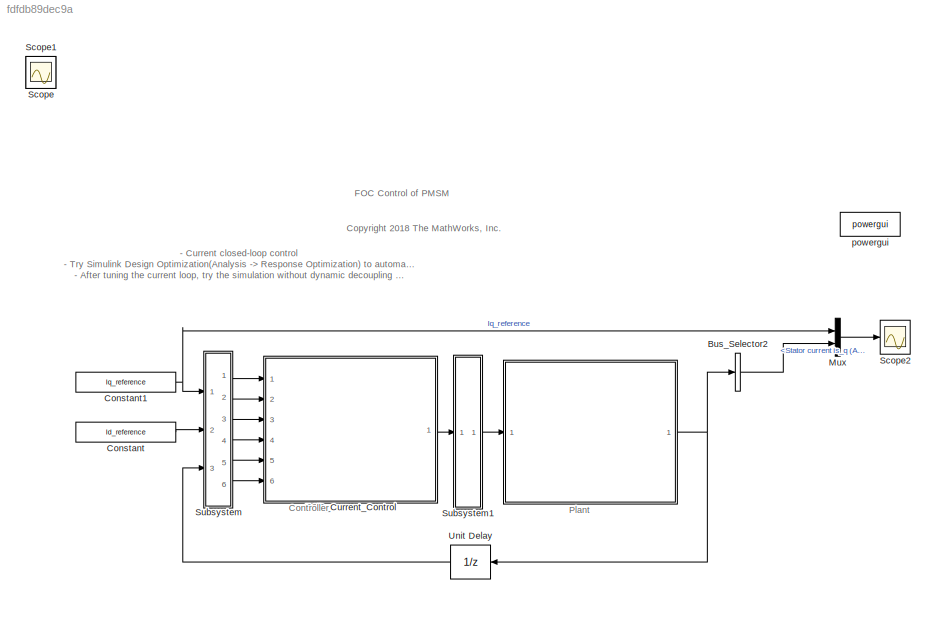
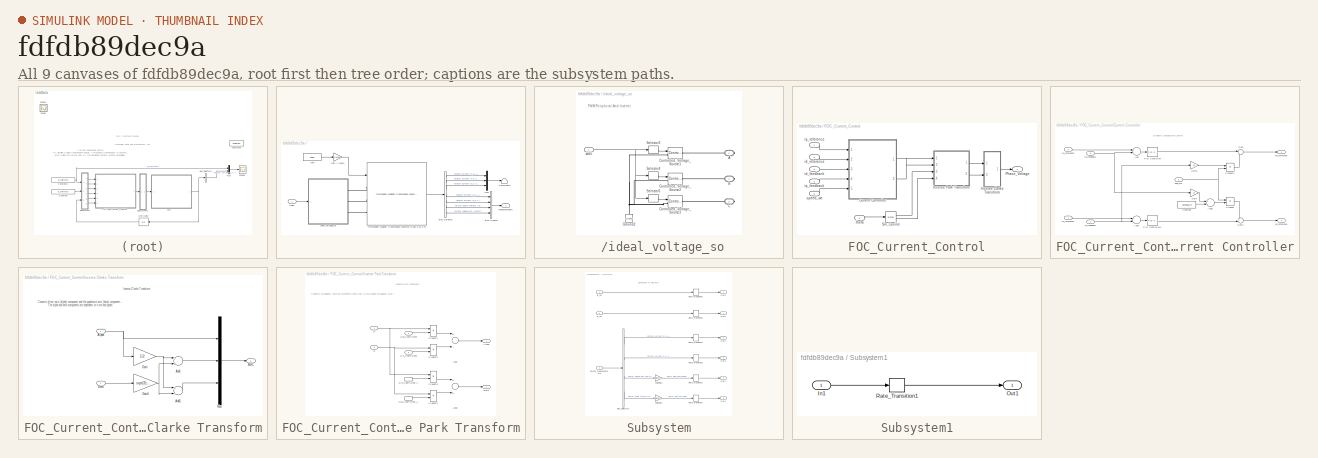
[diagram: thumbnail index - all 9 canvases of the model, root first then tree order]
MODEL slx_fdfdb89dec9a
KIND model
CONFIG AbsTol = auto
CONFIG EnableMultiTasking = off
CONFIG FixedStep = auto
CONFIG MaxStep = 1e-4
CONFIG MinStep = auto
CONFIG RelTol = 1e-3
CONFIG SampleTimeConstraint = Unconstrained
CONFIG Solver = FixedStepDiscrete
CONFIG SolverName = FixedStepDiscrete
CONFIG StartTime = 0.0
CONFIG StopTime = 0.3
BLOCK [SubSystem]  
  Ports = [1, 1]
  RequestExecContextInheritance = off
BLOCK [BusCreator]  /Bus Creator
  DisplayOption = bar
  InheritFromInputs = on
  Inputs = 4
  Ports = [4, 1]
BLOCK [BusSelector]  /Bus Selector
  OutputAsBus = off
  OutputSignals = Stator current is_a (A),Stator current is_b (A),Stator current is_c (A),Stator current is_q (A),Stator current is_d (A),Rotor angle thetam (rad),Rotor speed wm (rad/s)
  Ports = [1, 7]
BLOCK [Mux]  /Mux
  DisplayOption = bar
  Inputs = 3
  Ports = [3, 1]
BLOCK [Reference]  /Permanent Magnet Synchronous Machine [0.002 0.01 3 0]  REF=powerlib/Machines/Permanent Magnet
Synchronous Machine
  Ports = [1, 1, 0, 0, 0, 3]
  SourceBlock = powerlib/Machines/Permanent Magnet\nSynchronous Machine
  SourceProductBaseCode = PS
  SourceProductName = Simscape Electrical
  SourceType = Permanent Magnet Synchronous Machine
BLOCK [Terminator]  /Terminator
BLOCK [Inport]  /Vabc
  IconDisplay = Port number
BLOCK [SubSystem]  /ideal_voltage_so
  Ports = [1, 0, 0, 0, 0, 0, 3]
  RequestExecContextInheritance = off
  VariantControl = variantPwm == enumPwm.behavior
BLOCK [PMIOPort]  /ideal_voltage_so/A
  Side = Right
  Tag = PMCPort
BLOCK [PMIOPort]  /ideal_voltage_so/B
  Port = 2
  Side = Right
  Tag = PMCPort
BLOCK [PMIOPort]  /ideal_voltage_so/C
  Port = 3
  Side = Right
  Tag = PMCPort
BLOCK [Reference]  /ideal_voltage_so/Controlled_Voltage_Source1  REF=powerlib/Electrical
Sources/Controlled Voltage Source
  Ports = [1, 0, 0, 0, 0, 1, 1]
  SourceBlock = powerlib/Electrical\nSources/Controlled Voltage Source
  SourceProductBaseCode = PS
  SourceProductName = Simscape Electrical
  SourceType = Controlled Voltage Source
BLOCK [Reference]  /ideal_voltage_so/Controlled_Voltage_Source2  REF=powerlib/Electrical
Sources/Controlled Voltage Source
  Ports = [1, 0, 0, 0, 0, 1, 1]
  SourceBlock = powerlib/Electrical\nSources/Controlled Voltage Source
  SourceProductBaseCode = PS
  SourceProductName = Simscape Electrical
  SourceType = Controlled Voltage Source
BLOCK [Reference]  /ideal_voltage_so/Controlled_Voltage_Source3  REF=powerlib/Electrical
Sources/Controlled Voltage Source
  Ports = [1, 0, 0, 0, 0, 1, 1]
  SourceBlock = powerlib/Electrical\nSources/Controlled Voltage Source
  SourceProductBaseCode = PS
  SourceProductName = Simscape Electrical
  SourceType = Controlled Voltage Source
BLOCK [Reference]  /ideal_voltage_so/Ground2  REF=powerlib/Elements/Ground
  Ports = [0, 0, 0, 0, 0, 1]
  SourceBlock = powerlib/Elements/Ground
  SourceProductBaseCode = PS
  SourceProductName = Simscape Electrical
  SourceType = Ground
BLOCK [Selector]  /ideal_voltage_so/Selector3
  IndexOptions = Index vector (dialog)
  Indices = [1]
  InputPortWidth = 3
  OutputSizes = 1
  Ports = [1, 1]
BLOCK [Selector]  /ideal_voltage_so/Selector4
  IndexOptions = Index vector (dialog)
  Indices = 2
  InputPortWidth = 3
  OutputSizes = 1
  Ports = [1, 1]
BLOCK [Selector]  /ideal_voltage_so/Selector5
  IndexOptions = Index vector (dialog)
  Indices = 3
  InputPortWidth = 3
  OutputSizes = 1
  Ports = [1, 1]
BLOCK [Inport]  /ideal_voltage_so/vabc
  IconDisplay = Port number
BLOCK [Outport]  /measurements
  IconDisplay = Port number
BLOCK [Constant]  /rpm
  Value = 1000
BLOCK [Gain]  /rpm -> rad//s
  Gain = 2*pi/60
  OutDataTypeStr = Inherit: Inherit via internal rule
  ParamDataTypeStr = Inherit: Inherit via internal rule
  SaturateOnIntegerOverflow = off
BLOCK [BusSelector] Bus_Selector2
  OutputAsBus = off
  OutputSignals = Stator current is_q (A)
  Ports = [1, 1]
BLOCK [Constant] Constant
  Value = Id_reference
BLOCK [Constant] Constant1
  Value = Iq_reference
  VectorParams1D = off
BLOCK [SubSystem] FOC_Current_Control
  Ports = [6, 1]
  RequestExecContextInheritance = off
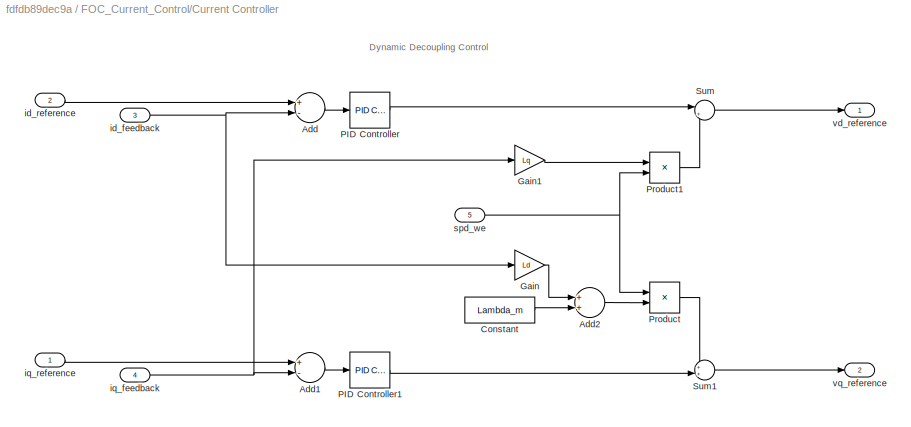
BLOCK [SubSystem] FOC_Current_Control/Current Controller
  Ports = [5, 2]
  RequestExecContextInheritance = off
BLOCK [Sum] FOC_Current_Control/Current Controller/Add
  InputSameDT = off
  Inputs = +-
  OutDataTypeStr = Inherit: Inherit via internal rule
  Ports = [2, 1]
  SaturateOnIntegerOverflow = off
BLOCK [Sum] FOC_Current_Control/Current Controller/Add1
  InputSameDT = off
  Inputs = +-
  OutDataTypeStr = Inherit: Inherit via internal rule
  Ports = [2, 1]
  SaturateOnIntegerOverflow = off
BLOCK [Sum] FOC_Current_Control/Current Controller/Add2
  InputSameDT = off
  OutDataTypeStr = Inherit: Inherit via internal rule
  Ports = [2, 1]
  SaturateOnIntegerOverflow = off
BLOCK [Constant] FOC_Current_Control/Current Controller/Constant
  SampleTime = 1e-4
  Value = Lambda_m
BLOCK [Gain] FOC_Current_Control/Current Controller/Gain
  Gain = Ld
  OutDataTypeStr = Inherit: Inherit via internal rule
  ParamDataTypeStr = Inherit: Inherit via internal rule
  SaturateOnIntegerOverflow = off
BLOCK [Gain] FOC_Current_Control/Current Controller/Gain1
  Gain = Lq
  OutDataTypeStr = Inherit: Inherit via internal rule
  ParamDataTypeStr = Inherit: Inherit via internal rule
  SaturateOnIntegerOverflow = off
BLOCK [Reference] FOC_Current_Control/Current Controller/PID Controller  REF=simulink/Continuous/PID Controller
  Ports = [1, 1]
  SourceBlock = simulink/Continuous/PID Controller
  SourceProductBaseCode = SL
  SourceProductName = Simulink
  SourceType = PID 1dof
BLOCK [Reference] FOC_Current_Control/Current Controller/PID Controller1  REF=simulink/Continuous/PID Controller
  Ports = [1, 1]
  SourceBlock = simulink/Continuous/PID Controller
  SourceProductBaseCode = SL
  SourceProductName = Simulink
  SourceType = PID 1dof
BLOCK [Product] FOC_Current_Control/Current Controller/Product
  InputSameDT = off
  OutDataTypeStr = Inherit: Inherit via internal rule
  Ports = [2, 1]
  RndMeth = Floor
  SaturateOnIntegerOverflow = off
BLOCK [Product] FOC_Current_Control/Current Controller/Product1
  InputSameDT = off
  OutDataTypeStr = Inherit: Inherit via internal rule
  Ports = [2, 1]
  RndMeth = Floor
  SaturateOnIntegerOverflow = off
BLOCK [Sum] FOC_Current_Control/Current Controller/Sum
  IconShape = round
  InputSameDT = off
  Inputs = |+-
  OutDataTypeStr = Inherit: Inherit via internal rule
  Ports = [2, 1]
  SaturateOnIntegerOverflow = off
BLOCK [Sum] FOC_Current_Control/Current Controller/Sum1
  IconShape = round
  InputSameDT = off
  Inputs = ++|
  OutDataTypeStr = Inherit: Inherit via internal rule
  Ports = [2, 1]
  SaturateOnIntegerOverflow = off
BLOCK [Inport] FOC_Current_Control/Current Controller/id_feedback
  IconDisplay = Port number
  Port = 3
  SampleTime = 1e-4
BLOCK [Inport] FOC_Current_Control/Current Controller/id_reference
  IconDisplay = Port number
  Port = 2
  SampleTime = 1e-4
BLOCK [Inport] FOC_Current_Control/Current Controller/iq_feedback
  IconDisplay = Port number
  Port = 4
  SampleTime = 1e-4
BLOCK [Inport] FOC_Current_Control/Current Controller/iq_reference
  IconDisplay = Port number
  SampleTime = 1e-4
BLOCK [Inport] FOC_Current_Control/Current Controller/spd_we
  IconDisplay = Port number
  Port = 5
  SampleTime = 1e-4
BLOCK [Outport] FOC_Current_Control/Current Controller/vd_reference
  IconDisplay = Port number
  SampleTime = 1e-4
BLOCK [Outport] FOC_Current_Control/Current Controller/vq_reference
  IconDisplay = Port number
  Port = 2
  SampleTime = 1e-4
BLOCK [SubSystem] FOC_Current_Control/Inverse Clarke Transform
  Ports = [2, 1]
  RequestExecContextInheritance = off
BLOCK [Outport] FOC_Current_Control/Inverse Clarke Transform/ABC
  IconDisplay = Port number
BLOCK [Sum] FOC_Current_Control/Inverse Clarke Transform/Add
  InputSameDT = off
  Inputs = -+
  Ports = [2, 1]
  SaturateOnIntegerOverflow = off
BLOCK [Sum] FOC_Current_Control/Inverse Clarke Transform/Add1
  InputSameDT = off
  Inputs = --
  Ports = [2, 1]
  SaturateOnIntegerOverflow = off
BLOCK [Inport] FOC_Current_Control/Inverse Clarke Transform/Alpha
  IconDisplay = Port number
BLOCK [Inport] FOC_Current_Control/Inverse Clarke Transform/Beta
  IconDisplay = Port number
  Port = 2
BLOCK [Gain] FOC_Current_Control/Inverse Clarke Transform/Gain
  Gain = 1/2
  OutDataTypeStr = Inherit: Inherit via internal rule
  ParamDataTypeStr = Inherit: Inherit via internal rule
  SaturateOnIntegerOverflow = off
BLOCK [Gain] FOC_Current_Control/Inverse Clarke Transform/Gain1
  Gain = sqrt(3)/2
  OutDataTypeStr = Inherit: Inherit via internal rule
  ParamDataTypeStr = Inherit: Inherit via internal rule
  SaturateOnIntegerOverflow = off
BLOCK [Mux] FOC_Current_Control/Inverse Clarke Transform/Mux
  DisplayOption = bar
  Inputs = 3
  Ports = [3, 1]
BLOCK [SubSystem] FOC_Current_Control/Inverse Park Transform
  Ports = [4, 2]
  RequestExecContextInheritance = off
BLOCK [Sum] FOC_Current_Control/Inverse Park Transform/Add1
  InputSameDT = off
  Inputs = +-
  Ports = [2, 1]
  SaturateOnIntegerOverflow = off
BLOCK [Sum] FOC_Current_Control/Inverse Park Transform/Add2
  InputSameDT = off
  Ports = [2, 1]
  SaturateOnIntegerOverflow = off
BLOCK [Outport] FOC_Current_Control/Inverse Park Transform/Alpha
  IconDisplay = Port number
BLOCK [Outport] FOC_Current_Control/Inverse Park Transform/Beta
  IconDisplay = Port number
  Port = 2
BLOCK [Inport] FOC_Current_Control/Inverse Park Transform/Cos_Coefficient
  IconDisplay = Port number
  Port = 4
BLOCK [InportShadow] FOC_Current_Control/Inverse Park Transform/Cos_Coefficient_1
  IconDisplay = Port number
  Port = 4
BLOCK [Inport] FOC_Current_Control/Inverse Park Transform/D
  IconDisplay = Port number
BLOCK [Product] FOC_Current_Control/Inverse Park Transform/Product1
  InputSameDT = off
  OutDataTypeStr = Inherit: Inherit via internal rule
  Ports = [2, 1]
  RndMeth = Simplest
  SaturateOnIntegerOverflow = off
BLOCK [Product] FOC_Current_Control/Inverse Park Transform/Product2
  InputSameDT = off
  OutDataTypeStr = Inherit: Inherit via internal rule
  Ports = [2, 1]
  RndMeth = Simplest
  SaturateOnIntegerOverflow = off
BLOCK [Product] FOC_Current_Control/Inverse Park Transform/Product3
  InputSameDT = off
  OutDataTypeStr = Inherit: Inherit via internal rule
  Ports = [2, 1]
  RndMeth = Simplest
  SaturateOnIntegerOverflow = off
BLOCK [Product] FOC_Current_Control/Inverse Park Transform/Product4
  InputSameDT = off
  OutDataTypeStr = Inherit: Inherit via internal rule
  Ports = [2, 1]
  RndMeth = Simplest
  SaturateOnIntegerOverflow = off
BLOCK [Inport] FOC_Current_Control/Inverse Park Transform/Q
  IconDisplay = Port number
  Port = 2
BLOCK [Inport] FOC_Current_Control/Inverse Park Transform/Sin_Coefficient
  IconDisplay = Port number
  Port = 3
BLOCK [InportShadow] FOC_Current_Control/Inverse Park Transform/Sin_Coefficient_1
  IconDisplay = Port number
  Port = 3
BLOCK [Outport] FOC_Current_Control/Phase_Voltage
  IconDisplay = Port number
  SampleTime = 1e-4
BLOCK [Trigonometry] FOC_Current_Control/Sin_Cosine
  Operator = sincos
  Ports = [1, 2]
BLOCK [Inport] FOC_Current_Control/id_feedback
  IconDisplay = Port number
  Port = 4
  SampleTime = 1e-4
BLOCK [Inport] FOC_Current_Control/id_reference
  IconDisplay = Port number
  Port = 2
  SampleTime = 1e-4
BLOCK [Inport] FOC_Current_Control/iq_feedback
  IconDisplay = Port number
  Port = 3
  SampleTime = 1e-4
BLOCK [Inport] FOC_Current_Control/iq_reference
  IconDisplay = Port number
  SampleTime = 1e-4
BLOCK [Inport] FOC_Current_Control/speed_we
  IconDisplay = Port number
  Port = 5
  SampleTime = 1e-4
BLOCK [Inport] FOC_Current_Control/theta
  IconDisplay = Port number
  Port = 6
  SampleTime = 1e-4
BLOCK [Mux] Mux
  DisplayOption = bar
  Inputs = 2
  Ports = [2, 1]
BLOCK [Scope] Scope
  Floating = off
  IOType = viewer
  NumInputPorts = 1
  Ports = []
  ScopeSpecificationString = Simulink.scopes.TimeScopeBlockCfg('CurrentConfiguration', extmgr.ConfigurationSet(extmgr.Configuration('Core','General UI',true),extmgr.Configuration('Core','Source UI',true),extmgr.Configuration('Sources','WiredSimulink',true,'DataLoggingVariableName','ScopeData1'),extmgr.Configuration('Visuals','Time Domain',true,'SerializedDisplays',{struct('MinYLimReal','0.10553','MaxYLimReal','0.2838','YLabel...<+1378ch>
BLOCK [Scope] Scope1
  Floating = off
  IOType = viewer
  NumInputPorts = 1
  Ports = []
  ScopeSpecificationString = Simulink.scopes.TimeScopeBlockCfg('CurrentConfiguration', extmgr.ConfigurationSet(extmgr.Configuration('Core','General UI',true),extmgr.Configuration('Core','Source UI',true),extmgr.Configuration('Sources','WiredSimulink',true,'DataLoggingVariableName','ScopeData2'),extmgr.Configuration('Visuals','Time Domain',true,'SerializedDisplays',{struct('MinYLimReal','-0.03595','MaxYLimReal','0.48049','YLab...<+1384ch>
BLOCK [Scope] Scope2
  Floating = off
  NumInputPorts = 1
  Ports = [1]
  ScopeSpecificationString = Simulink.scopes.TimeScopeBlockCfg('CurrentConfiguration', extmgr.ConfigurationSet(extmgr.Configuration('Core','General UI',true,'FigureColor',[1 1 1]),extmgr.Configuration('Core','Source UI',true),extmgr.Configuration('Sources','WiredSimulink',true,'DataLoggingVariableName','ScopeData1'),extmgr.Configuration('Visuals','Time Domain',true,'SerializedDisplays',{struct('MinYLimReal','-13.40344','MaxYL...<+2014ch>
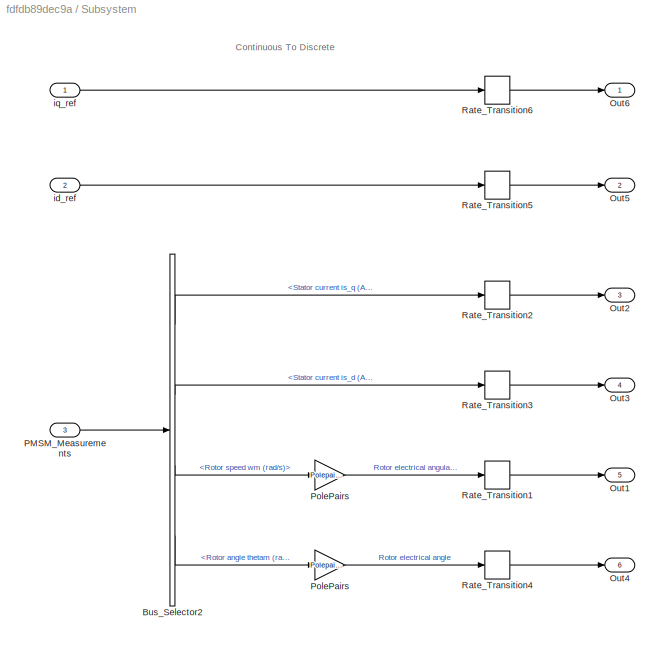
BLOCK [SubSystem] Subsystem
  Ports = [3, 6]
  RequestExecContextInheritance = off
BLOCK [BusSelector] Subsystem/Bus_Selector2
  OutputAsBus = off
  OutputSignals = Stator current is_q (A),Stator current is_d (A),Rotor speed wm (rad/s),Rotor angle thetam (rad)
  Ports = [1, 4]
BLOCK [Outport] Subsystem/Out1
  IconDisplay = Port number
  Port = 5
BLOCK [Outport] Subsystem/Out2
  IconDisplay = Port number
  Port = 3
BLOCK [Outport] Subsystem/Out3
  IconDisplay = Port number
  Port = 4
BLOCK [Outport] Subsystem/Out4
  IconDisplay = Port number
  Port = 6
BLOCK [Outport] Subsystem/Out5
  IconDisplay = Port number
  Port = 2
BLOCK [Outport] Subsystem/Out6
  IconDisplay = Port number
BLOCK [Inport] Subsystem/PMSM_Measurements
  IconDisplay = Port number
  Port = 3
BLOCK [Gain] Subsystem/PolePairs
  Gain = Polepairs
  OutDataTypeStr = Inherit: Inherit via internal rule
  ParamDataTypeStr = Inherit: Inherit via internal rule
  SaturateOnIntegerOverflow = off
BLOCK [Gain] Subsystem/PolePairs 
  Gain = Polepairs
  OutDataTypeStr = Inherit: Inherit via internal rule
  ParamDataTypeStr = Inherit: Inherit via internal rule
  SaturateOnIntegerOverflow = off
BLOCK [RateTransition] Subsystem/Rate_Transition1
  Deterministic = off
  Integrity = off
BLOCK [RateTransition] Subsystem/Rate_Transition2
  Deterministic = off
  Integrity = off
BLOCK [RateTransition] Subsystem/Rate_Transition3
  Deterministic = off
  Integrity = off
BLOCK [RateTransition] Subsystem/Rate_Transition4
  Deterministic = off
  Integrity = off
BLOCK [RateTransition] Subsystem/Rate_Transition5
  Deterministic = off
  Integrity = off
BLOCK [RateTransition] Subsystem/Rate_Transition6
  Deterministic = off
  Integrity = off
BLOCK [Inport] Subsystem/id_ref
  IconDisplay = Port number
  Port = 2
BLOCK [Inport] Subsystem/iq_ref
  IconDisplay = Port number
BLOCK [SubSystem] Subsystem1
  Ports = [1, 1]
  RequestExecContextInheritance = off
BLOCK [Inport] Subsystem1/In1
  IconDisplay = Port number
BLOCK [Outport] Subsystem1/Out1
  IconDisplay = Port number
BLOCK [RateTransition] Subsystem1/Rate_Transition1
  Integrity = off
BLOCK [UnitDelay] Unit Delay
  InputProcessing = Elements as channels (sample based)
  SampleTime = 1e-4
BLOCK [Reference] powergui  REF=powerlib/powergui
  Ports = []
  SourceBlock = powerlib/powergui
  SourceProductBaseCode = PS
  SourceProductName = Simscape Electrical
  SourceType = PSB option menu block
ANNOTATION (root): <copyright redacted>
ANNOTATION (root): - Current closed-loop control - Try Simulink Design Optimization(Analysis -> Response Optimization) to automate tuning the PI controller . Initial condition: speed = 1000 rpm. (kp, ki) = (1,1) - After tuning the current loop, try the simulation without dynamic decoupling control.
ANNOTATION (root): Plant
ANNOTATION (root): Controller
ANNOTATION (root): FOC Control of PMSM
ANNOTATION  /ideal_voltage_so: PWM Peripheral And Inverter
ANNOTATION FOC_Current_Control/Current Controller: Dynamic Decoupling Control
ANNOTATION FOC_Current_Control/Inverse Clarke Transform: Converts direct axis (alpha) component and the quadrature axis (beta) component to balanced three-phase quantities The alpha and beta components are dependent on time and speed.
ANNOTATION FOC_Current_Control/Inverse Clarke Transform: Inverse Clarke Transform
ANNOTATION FOC_Current_Control/Inverse Park Transform: Converts orthogonal rotating reference frame (dq) to two-phase orthogonal stationary reference frame (alpha, beta)
ANNOTATION FOC_Current_Control/Inverse Park Transform: Inverse Park Transform
ANNOTATION Subsystem: Continuous To Discrete
LINE  /Bus Creator:1 ->  /measurements:1
LINE  /Bus Selector:1 ->  /Mux:1
LINE  /Bus Selector:2 ->  /Mux:2
LINE  /Bus Selector:3 ->  /Mux:3
LINE  /Bus Selector:4 ->  /Bus Creator:1
LINE  /Bus Selector:5 ->  /Bus Creator:2
LINE  /Bus Selector:6 ->  /Bus Creator:3
LINE  /Bus Selector:7 ->  /Bus Creator:4
LINE  /Mux:1 ->  /Terminator:1
LINE  /Permanent Magnet Synchronous Machine [0.002 0.01 3 0]:1 ->  /Bus Selector:1
LINE  /Vabc:1 ->  /ideal_voltage_so:1
LINE  /ideal_voltage_so/Selector3:1 ->  /ideal_voltage_so/Controlled_Voltage_Source1:1
LINE  /ideal_voltage_so/Selector4:1 ->  /ideal_voltage_so/Controlled_Voltage_Source2:1
LINE  /ideal_voltage_so/Selector5:1 ->  /ideal_voltage_so/Controlled_Voltage_Source3:1
NET  /ideal_voltage_so/vabc:1 ->  /ideal_voltage_so/Selector3:1,  /ideal_voltage_so/Selector4:1,  /ideal_voltage_so/Selector5:1
LINE  /rpm -> rad//s:1 ->  /Permanent Magnet Synchronous Machine [0.002 0.01 3 0]:1
LINE  /rpm:1 ->  /rpm -> rad//s:1
NET  :1 -> Bus_Selector2:1, Unit Delay:1
LINE Bus_Selector2:1 -> Mux:2
NET Constant1:1 -> Mux:1, Subsystem:1
LINE Constant:1 -> Subsystem:2
LINE FOC_Current_Control/Current Controller/Add1:1 -> FOC_Current_Control/Current Controller/PID Controller1:1
LINE FOC_Current_Control/Current Controller/Add2:1 -> FOC_Current_Control/Current Controller/Product:2
LINE FOC_Current_Control/Current Controller/Add:1 -> FOC_Current_Control/Current Controller/PID Controller:1
LINE FOC_Current_Control/Current Controller/Constant:1 -> FOC_Current_Control/Current Controller/Add2:2
LINE FOC_Current_Control/Current Controller/Gain1:1 -> FOC_Current_Control/Current Controller/Product1:1
LINE FOC_Current_Control/Current Controller/Gain:1 -> FOC_Current_Control/Current Controller/Add2:1
LINE FOC_Current_Control/Current Controller/PID Controller1:1 -> FOC_Current_Control/Current Controller/Sum1:2
LINE FOC_Current_Control/Current Controller/PID Controller:1 -> FOC_Current_Control/Current Controller/Sum:1
LINE FOC_Current_Control/Current Controller/Product1:1 -> FOC_Current_Control/Current Controller/Sum:2
LINE FOC_Current_Control/Current Controller/Product:1 -> FOC_Current_Control/Current Controller/Sum1:1
LINE FOC_Current_Control/Current Controller/Sum1:1 -> FOC_Current_Control/Current Controller/vq_reference:1
LINE FOC_Current_Control/Current Controller/Sum:1 -> FOC_Current_Control/Current Controller/vd_reference:1
NET FOC_Current_Control/Current Controller/id_feedback:1 -> FOC_Current_Control/Current Controller/Add:2, FOC_Current_Control/Current Controller/Gain:1
LINE FOC_Current_Control/Current Controller/id_reference:1 -> FOC_Current_Control/Current Controller/Add:1
NET FOC_Current_Control/Current Controller/iq_feedback:1 -> FOC_Current_Control/Current Controller/Add1:2, FOC_Current_Control/Current Controller/Gain1:1
LINE FOC_Current_Control/Current Controller/iq_reference:1 -> FOC_Current_Control/Current Controller/Add1:1
NET FOC_Current_Control/Current Controller/spd_we:1 -> FOC_Current_Control/Current Controller/Product1:2, FOC_Current_Control/Current Controller/Product:1
LINE FOC_Current_Control/Current Controller:1 -> FOC_Current_Control/Inverse Park Transform:1
LINE FOC_Current_Control/Current Controller:2 -> FOC_Current_Control/Inverse Park Transform:2
LINE FOC_Current_Control/Inverse Clarke Transform/Add1:1 -> FOC_Current_Control/Inverse Clarke Transform/Mux:3
LINE FOC_Current_Control/Inverse Clarke Transform/Add:1 -> FOC_Current_Control/Inverse Clarke Transform/Mux:2
NET FOC_Current_Control/Inverse Clarke Transform/Alpha:1 -> FOC_Current_Control/Inverse Clarke Transform/Gain:1, FOC_Current_Control/Inverse Clarke Transform/Mux:1
LINE FOC_Current_Control/Inverse Clarke Transform/Beta:1 -> FOC_Current_Control/Inverse Clarke Transform/Gain1:1
NET FOC_Current_Control/Inverse Clarke Transform/Gain1:1 -> FOC_Current_Control/Inverse Clarke Transform/Add1:2, FOC_Current_Control/Inverse Clarke Transform/Add:2
NET FOC_Current_Control/Inverse Clarke Transform/Gain:1 -> FOC_Current_Control/Inverse Clarke Transform/Add1:1, FOC_Current_Control/Inverse Clarke Transform/Add:1
LINE FOC_Current_Control/Inverse Clarke Transform/Mux:1 -> FOC_Current_Control/Inverse Clarke Transform/ABC:1
LINE FOC_Current_Control/Inverse Clarke Transform:1 -> FOC_Current_Control/Phase_Voltage:1
LINE FOC_Current_Control/Inverse Park Transform/Add1:1 -> FOC_Current_Control/Inverse Park Transform/Alpha:1
LINE FOC_Current_Control/Inverse Park Transform/Add2:1 -> FOC_Current_Control/Inverse Park Transform/Beta:1
LINE FOC_Current_Control/Inverse Park Transform/Cos_Coefficient:1 -> FOC_Current_Control/Inverse Park Transform/Product1:2
LINE FOC_Current_Control/Inverse Park Transform/Cos_Coefficient_1:1 -> FOC_Current_Control/Inverse Park Transform/Product4:2
NET FOC_Current_Control/Inverse Park Transform/D:1 -> FOC_Current_Control/Inverse Park Transform/Product1:1, FOC_Current_Control/Inverse Park Transform/Product3:1
LINE FOC_Current_Control/Inverse Park Transform/Product1:1 -> FOC_Current_Control/Inverse Park Transform/Add1:1
LINE FOC_Current_Control/Inverse Park Transform/Product2:1 -> FOC_Current_Control/Inverse Park Transform/Add1:2
LINE FOC_Current_Control/Inverse Park Transform/Product3:1 -> FOC_Current_Control/Inverse Park Transform/Add2:1
LINE FOC_Current_Control/Inverse Park Transform/Product4:1 -> FOC_Current_Control/Inverse Park Transform/Add2:2
NET FOC_Current_Control/Inverse Park Transform/Q:1 -> FOC_Current_Control/Inverse Park Transform/Product2:1, FOC_Current_Control/Inverse Park Transform/Product4:1
LINE FOC_Current_Control/Inverse Park Transform/Sin_Coefficient:1 -> FOC_Current_Control/Inverse Park Transform/Product2:2
LINE FOC_Current_Control/Inverse Park Transform/Sin_Coefficient_1:1 -> FOC_Current_Control/Inverse Park Transform/Product3:2
LINE FOC_Current_Control/Inverse Park Transform:1 -> FOC_Current_Control/Inverse Clarke Transform:1
LINE FOC_Current_Control/Inverse Park Transform:2 -> FOC_Current_Control/Inverse Clarke Transform:2
LINE FOC_Current_Control/Sin_Cosine:1 -> FOC_Current_Control/Inverse Park Transform:3
LINE FOC_Current_Control/Sin_Cosine:2 -> FOC_Current_Control/Inverse Park Transform:4
LINE FOC_Current_Control/id_feedback:1 -> FOC_Current_Control/Current Controller:3
LINE FOC_Current_Control/id_reference:1 -> FOC_Current_Control/Current Controller:2
LINE FOC_Current_Control/iq_feedback:1 -> FOC_Current_Control/Current Controller:4
LINE FOC_Current_Control/iq_reference:1 -> FOC_Current_Control/Current Controller:1
LINE FOC_Current_Control/speed_we:1 -> FOC_Current_Control/Current Controller:5
LINE FOC_Current_Control/theta:1 -> FOC_Current_Control/Sin_Cosine:1
LINE FOC_Current_Control:1 -> Subsystem1:1
LINE Mux:1 -> Scope2:1
LINE Subsystem/Bus_Selector2:1 -> Subsystem/Rate_Transition2:1
LINE Subsystem/Bus_Selector2:2 -> Subsystem/Rate_Transition3:1
LINE Subsystem/Bus_Selector2:3 -> Subsystem/PolePairs :1
LINE Subsystem/Bus_Selector2:4 -> Subsystem/PolePairs:1
LINE Subsystem/PMSM_Measurements:1 -> Subsystem/Bus_Selector2:1
LINE Subsystem/PolePairs :1 -> Subsystem/Rate_Transition1:1
LINE Subsystem/PolePairs:1 -> Subsystem/Rate_Transition4:1
LINE Subsystem/Rate_Transition1:1 -> Subsystem/Out1:1
LINE Subsystem/Rate_Transition2:1 -> Subsystem/Out2:1
LINE Subsystem/Rate_Transition3:1 -> Subsystem/Out3:1
LINE Subsystem/Rate_Transition4:1 -> Subsystem/Out4:1
LINE Subsystem/Rate_Transition5:1 -> Subsystem/Out5:1
LINE Subsystem/Rate_Transition6:1 -> Subsystem/Out6:1
LINE Subsystem/id_ref:1 -> Subsystem/Rate_Transition5:1
LINE Subsystem/iq_ref:1 -> Subsystem/Rate_Transition6:1
LINE Subsystem1/In1:1 -> Subsystem1/Rate_Transition1:1
LINE Subsystem1/Rate_Transition1:1 -> Subsystem1/Out1:1
LINE Subsystem1:1 ->  :1
LINE Subsystem:1 -> FOC_Current_Control:1
LINE Subsystem:2 -> FOC_Current_Control:2
LINE Subsystem:3 -> FOC_Current_Control:3
LINE Subsystem:4 -> FOC_Current_Control:4
LINE Subsystem:5 -> FOC_Current_Control:5
LINE Subsystem:6 -> FOC_Current_Control:6
LINE Unit Delay:1 -> Subsystem:3
PLINE  /Permanent Magnet Synchronous Machine [0.002 0.01 3 0]:LConn1 --  /ideal_voltage_so:RConn1
PLINE  /Permanent Magnet Synchronous Machine [0.002 0.01 3 0]:LConn2 --  /ideal_voltage_so:RConn2
PLINE  /Permanent Magnet Synchronous Machine [0.002 0.01 3 0]:LConn3 --  /ideal_voltage_so:RConn3
PLINE  /ideal_voltage_so/A:RConn1 --  /ideal_voltage_so/Controlled_Voltage_Source1:RConn1
PLINE  /ideal_voltage_so/B:RConn1 --  /ideal_voltage_so/Controlled_Voltage_Source2:RConn1
PLINE  /ideal_voltage_so/C:RConn1 --  /ideal_voltage_so/Controlled_Voltage_Source3:RConn1
PNET net1:  /ideal_voltage_so/Controlled_Voltage_Source1:LConn1 --  /ideal_voltage_so/Controlled_Voltage_Source2:LConn1 --  /ideal_voltage_so/Controlled_Voltage_Source3:LConn1 --  /ideal_voltage_so/Ground2:LConn1
note: NET lines group one-source signal fan-out (src -> all destinations, sorted); 1:1 wires keep LINE; PNET lines group multi-terminal physical nets as a canonical sorted terminal list (undirected conserving connections); 2-terminal nets keep the pairwise PLINE form
